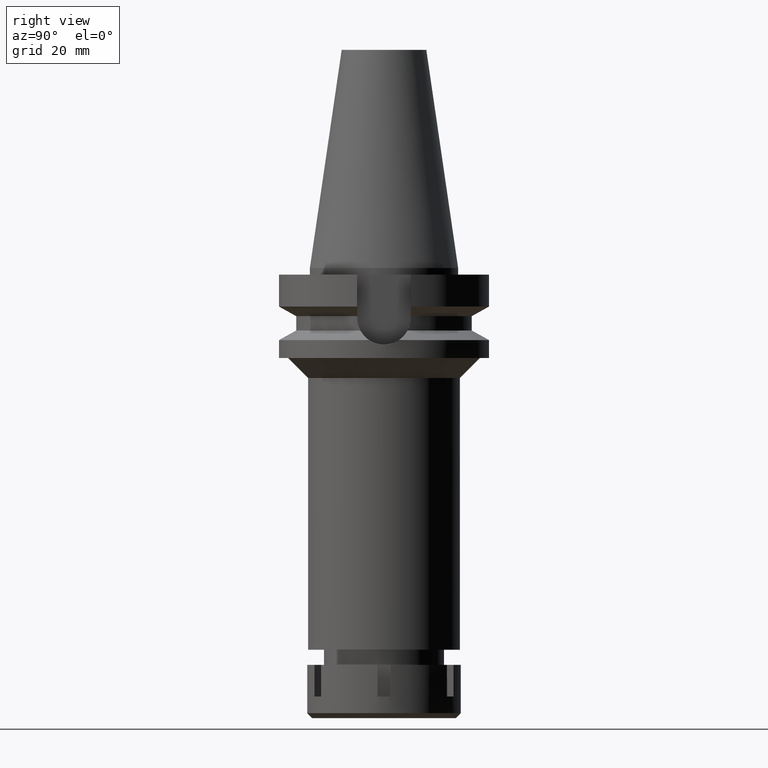
[diagram: clean part render]
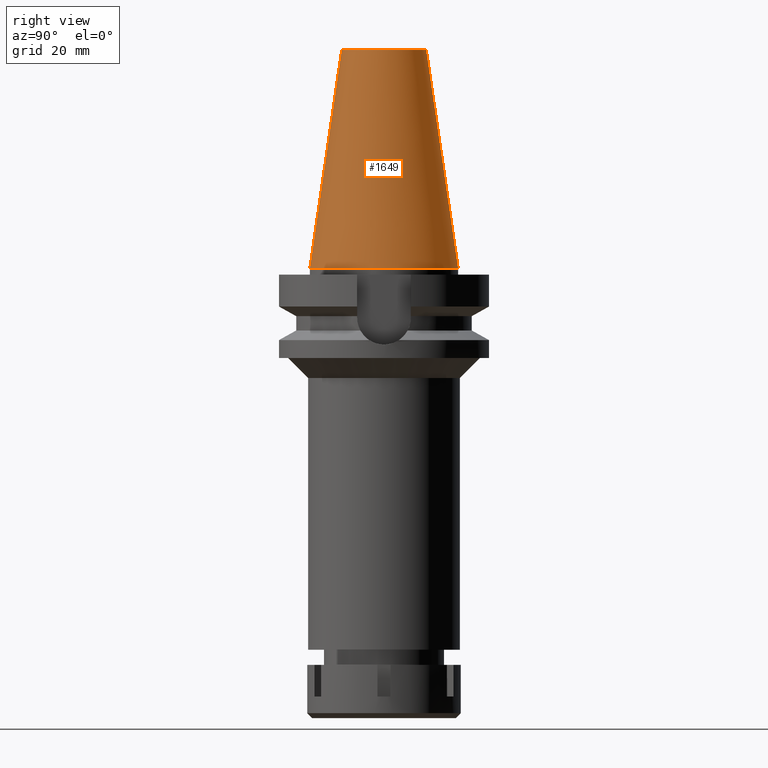
[diagram: same view with one face highlighted and labeled with its STEP entity id]
A machine part, right view. The second image highlights one B-rep face of the part: STEP entity #1649.
In plain terms, the highlighted conical surface has half-angle 8.297 deg.
Its self-contained STEP definition (entity closure, byte-faithful):
#45 = CARTESIAN_POINT ( 'NONE',  ( 0.0000000000000000000, 12.68766899429999917, 65.40000000000000568 ) ) ;
#250 = EDGE_CURVE ( 'NONE', #1395, #1149, #2859, .T. ) ;
#364 = CARTESIAN_POINT ( 'NONE',  ( 0.0000000000000000000, -12.68766899429999917, 65.40000000000000568 ) ) ;
#404 = EDGE_CURVE ( 'NONE', #1003, #1149, #1185, .T. ) ;
#541 = ORIENTED_EDGE ( 'NONE', *, *, #404, .F. ) ;
#757 = EDGE_LOOP ( 'NONE', ( #3083, #1069, #541, #1683 ) ) ;
#890 = EDGE_CURVE ( 'NONE', #2336, #1395, #1250, .T. ) ;
#998 = VECTOR ( 'NONE', #3240, 1000.000000000000114 ) ;
#1003 = VERTEX_POINT ( 'NONE', #2009 ) ;
#1009 = AXIS2_PLACEMENT_3D ( 'NONE', #2073, #1267, #2360 ) ;
#1069 = ORIENTED_EDGE ( 'NONE', *, *, #250, .T. ) ;
#1094 = DIRECTION ( 'NONE',  ( 0.0000000000000000000, 0.0000000000000000000, -1.000000000000000000 ) ) ;
#1149 = VERTEX_POINT ( 'NONE', #2414 ) ;
#1185 = CIRCLE ( 'NONE', #3223, 22.22500000000000142 ) ;
#1250 = CIRCLE ( 'NONE', #2927, 12.68766899429999917 ) ;
#1267 = DIRECTION ( 'NONE',  ( 0.0000000000000000000, 0.0000000000000000000, -1.000000000000000000 ) ) ;
#1395 = VERTEX_POINT ( 'NONE', #2156 ) ;
#1414 = DIRECTION ( 'NONE',  ( 0.0000000000000000000, 0.0000000000000000000, -1.000000000000000000 ) ) ;
#1649 = ADVANCED_FACE ( 'NONE', ( #2611 ), #2289, .T. ) ;
#1683 = ORIENTED_EDGE ( 'NONE', *, *, #1719, .F. ) ;
#1719 = EDGE_CURVE ( 'NONE', #2336, #1003, #2371, .T. ) ;
#2009 = CARTESIAN_POINT ( 'NONE',  ( 0.0000000000000000000, 22.22500000000000142, 9.947598300640998705E-14 ) ) ;
#2073 = CARTESIAN_POINT ( 'NONE',  ( 0.0000000000000000000, 1.625106302469000024E-14, 32.70000000000000284 ) ) ;
#2141 = CARTESIAN_POINT ( 'NONE',  ( 0.0000000000000000000, 1.625106302469000024E-14, 2.842170943039999687E-14 ) ) ;
#2156 = CARTESIAN_POINT ( 'NONE',  ( 0.0000000000000000000, -12.68766899429999917, 65.40000000000000568 ) ) ;
#2289 = CONICAL_SURFACE ( 'NONE', #1009, 17.45633449714999941, 0.1448099680379422438 ) ;
#2336 = VERTEX_POINT ( 'NONE', #45 ) ;
#2360 = DIRECTION ( 'NONE',  ( 0.0000000000000000000, -1.000000000000000000, 0.0000000000000000000 ) ) ;
#2371 = LINE ( 'NONE', #3502, #2756 ) ;
#2414 = CARTESIAN_POINT ( 'NONE',  ( 0.0000000000000000000, -22.22500000000000142, 2.842170943039999687E-14 ) ) ;
#2611 = FACE_OUTER_BOUND ( 'NONE', #757, .T. ) ;
#2712 = DIRECTION ( 'NONE',  ( 0.0000000000000000000, 1.000000000000000000, 0.0000000000000000000 ) ) ;
#2733 = CARTESIAN_POINT ( 'NONE',  ( 0.0000000000000000000, 1.625106302469000024E-14, 65.40000000000000568 ) ) ;
#2756 = VECTOR ( 'NONE', #3475, 1000.000000000000114 ) ;
#2859 = LINE ( 'NONE', #364, #998 ) ;
#2927 = AXIS2_PLACEMENT_3D ( 'NONE', #2733, #1414, #3619 ) ;
#3083 = ORIENTED_EDGE ( 'NONE', *, *, #890, .T. ) ;
#3223 = AXIS2_PLACEMENT_3D ( 'NONE', #2141, #1094, #2712 ) ;
#3240 = DIRECTION ( 'NONE',  ( 0.0000000000000000000, -0.1443043893539925626, -0.9895333461855498891 ) ) ;
#3475 = DIRECTION ( 'NONE',  ( 0.0000000000000000000, 0.1443043893539925626, -0.9895333461855498891 ) ) ;
#3502 = CARTESIAN_POINT ( 'NONE',  ( 0.0000000000000000000, 12.68766899429999917, 65.40000000000000568 ) ) ;
#3619 = DIRECTION ( 'NONE',  ( 0.0000000000000000000, 1.000000000000000000, 0.0000000000000000000 ) ) ;